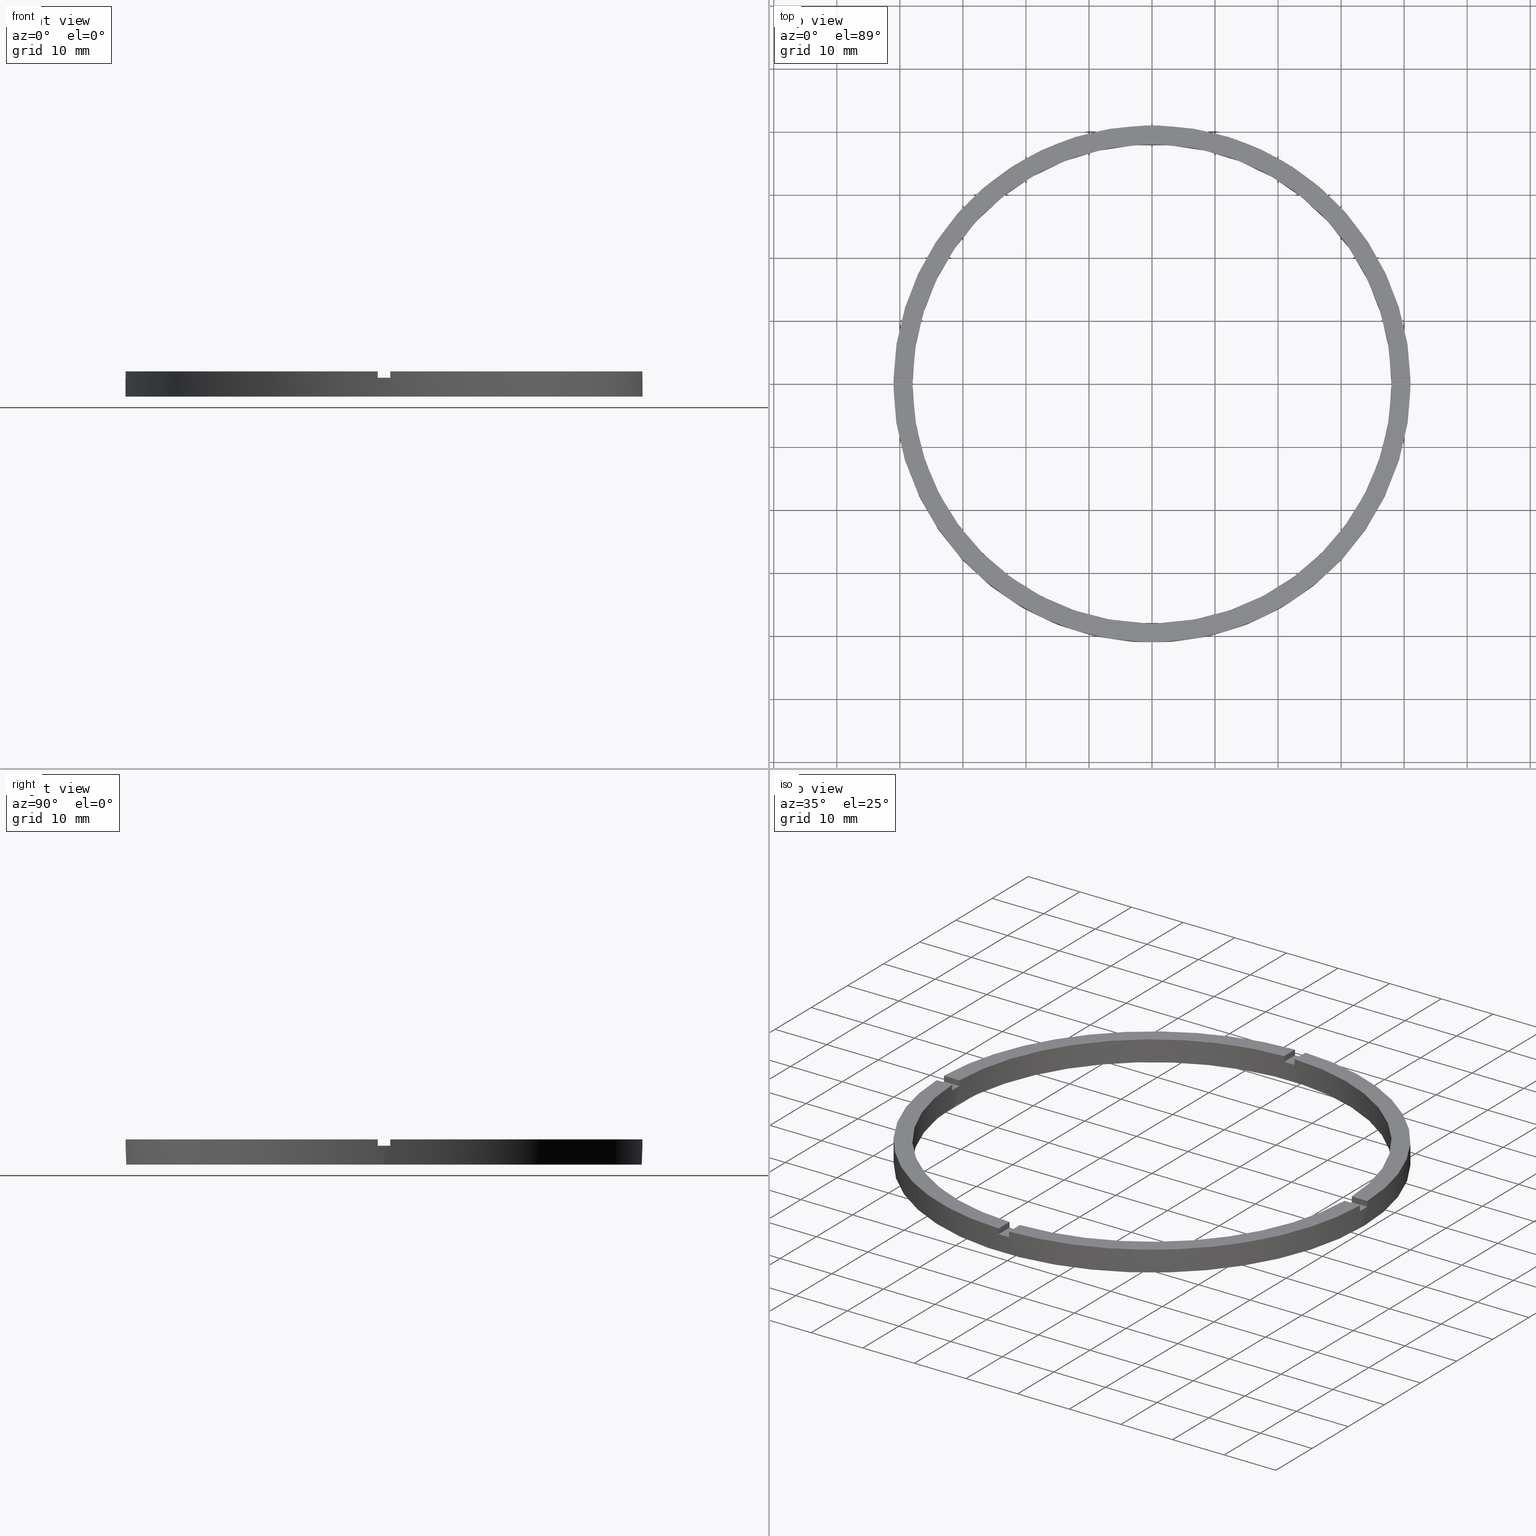
[diagram: canonical four-view strip — front | top / right | iso, engineering-drawing reading convention]
A machine part, canonical four-view strip (front | top / right | iso — engineering-drawing reading convention). The complete STEP part file that produces these views, byte-faithful:
ISO-10303-21;
HEADER;
FILE_DESCRIPTION (( 'STEP AP203' ),
    '1' );
FILE_NAME ('514169.step',
    '2024-12-26T02:44:15',
    ( 'MSI' ),
    ( '' ),
    'SwSTEP 2.0',
    'SolidWorks 2020',
    '' );
FILE_SCHEMA (( 'CONFIG_CONTROL_DESIGN' ));
ENDSEC;

DATA;
#1 = DIRECTION ( 'NONE',  ( 0.000000000000000000, 0.000000000000000000, 1.000000000000000000 ) ) ;
#2 = ORIENTED_EDGE ( 'NONE', *, *, #603, .F. ) ;
#3 = APPROVAL ( #153, 'δָ��' ) ;
#4 = EDGE_CURVE ( 'NONE', #454, #709, #275, .T. ) ;
#5 = CARTESIAN_POINT ( 'NONE',  ( -41.00000000000000000, 0.000000000000000000, 3.000000000000000000 ) ) ;
#6 = ORIENTED_EDGE ( 'NONE', *, *, #267, .T. ) ;
#7 = ORIENTED_EDGE ( 'NONE', *, *, #400, .F. ) ;
#8 = DIRECTION ( 'NONE',  ( 1.301042606982605074E-16, -1.000000000000000000, 0.000000000000000000 ) ) ;
#9 = ORIENTED_EDGE ( 'NONE', *, *, #192, .T. ) ;
#10 = AXIS2_PLACEMENT_3D ( 'NONE', #72, #150, #260 ) ;
#11 = ORIENTED_EDGE ( 'NONE', *, *, #151, .T. ) ;
#12 = AXIS2_PLACEMENT_3D ( 'NONE', #106, #239, #346 ) ;
#13 = DIRECTION ( 'NONE',  ( 0.000000000000000000, 0.000000000000000000, 1.000000000000000000 ) ) ;
#14 = CARTESIAN_POINT ( 'NONE',  ( 0.9999999999998411271, -40.98780306383840610, 3.000000000000000000 ) ) ;
#15 = LINE ( 'NONE', #280, #530 ) ;
#16 = VECTOR ( 'NONE', #586, 1000.000000000000000 ) ;
#17 = EDGE_CURVE ( 'NONE', #287, #416, #284, .T. ) ;
#18 = DIRECTION ( 'NONE',  ( 0.000000000000000000, 0.000000000000000000, 1.000000000000000000 ) ) ;
#19 = LINE ( 'NONE', #551, #533 ) ;
#20 = VECTOR ( 'NONE', #760, 1000.000000000000000 ) ;
#21 = PLANE ( 'NONE',  #10 ) ;
#22 = CARTESIAN_POINT ( 'NONE',  ( 0.000000000000000000, 0.000000000000000000, 3.000000000000000000 ) ) ;
#23 = ADVANCED_FACE ( 'NONE', ( #290 ), #381, .T. ) ;
#24 = APPROVAL_STATUS ( 'not_yet_approved' ) ;
#25 = AXIS2_PLACEMENT_3D ( 'NONE', #687, #33, #750 ) ;
#26 = FACE_OUTER_BOUND ( 'NONE', #722, .T. ) ;
#27 = APPROVAL_ROLE ( '' ) ;
#28 = DIRECTION ( 'NONE',  ( -0.000000000000000000, -0.000000000000000000, -1.000000000000000000 ) ) ;
#29 = APPROVAL ( #649, 'δָ��' ) ;
#30 = EDGE_CURVE ( 'NONE', #448, #257, #19, .T. ) ;
#31 = AXIS2_PLACEMENT_3D ( 'NONE', #89, #684, #96 ) ;
#32 = PLANE ( 'NONE',  #654 ) ;
#33 = DIRECTION ( 'NONE',  ( 0.000000000000000000, 0.000000000000000000, 1.000000000000000000 ) ) ;
#34 = CARTESIAN_POINT ( 'NONE',  ( -31.00000000000018829, 0.9999999999999733546, 3.000000000000000000 ) ) ;
#35 = LINE ( 'NONE', #384, #37 ) ;
#36 = CARTESIAN_POINT ( 'NONE',  ( -37.98683982644515567, -1.000000000000027978, 4.000000000000000000 ) ) ;
#37 = VECTOR ( 'NONE', #490, 1000.000000000000000 ) ;
#38 = EDGE_CURVE ( 'NONE', #448, #367, #272, .T. ) ;
#39 = EDGE_CURVE ( 'NONE', #451, #354, #270, .T. ) ;
#40 = LINE ( 'NONE', #433, #570 ) ;
#41 = LINE ( 'NONE', #469, #310 ) ;
#42 = DIRECTION ( 'NONE',  ( -1.951563910473907735E-16, 1.000000000000000000, 0.000000000000000000 ) ) ;
#43 = DIRECTION ( 'NONE',  ( 1.301042606982605074E-16, -1.000000000000000000, 0.000000000000000000 ) ) ;
#44 = VECTOR ( 'NONE', #547, 1000.000000000000000 ) ;
#45 = LINE ( 'NONE', #57, #313 ) ;
#46 = CARTESIAN_POINT ( 'NONE',  ( 0.000000000000000000, 0.000000000000000000, 3.000000000000000000 ) ) ;
#47 = DIRECTION ( 'NONE',  ( -0.000000000000000000, -0.000000000000000000, -1.000000000000000000 ) ) ;
#48 = CARTESIAN_POINT ( 'NONE',  ( 0.9999999999999742428, 40.98780306383839900, 4.000000000000000000 ) ) ;
#49 = DIRECTION ( 'NONE',  ( -1.000000000000000000, 0.000000000000000000, 0.000000000000000000 ) ) ;
#50 = CIRCLE ( 'NONE', #200, 38.00000000000000000 ) ;
#51 = CIRCLE ( 'NONE', #158, 41.00000000000000000 ) ;
#52 = PLANE ( 'NONE',  #249 ) ;
#53 = AXIS2_PLACEMENT_3D ( 'NONE', #160, #225, #518 ) ;
#54 = VECTOR ( 'NONE', #28, 1000.000000000000000 ) ;
#55 = CARTESIAN_POINT ( 'NONE',  ( 40.98780306383840610, 0.9999999999998432365, 4.000000000000000000 ) ) ;
#56 = LINE ( 'NONE', #116, #370 ) ;
#57 = CARTESIAN_POINT ( 'NONE',  ( 0.9999999999998397948, -31.00000000000018119, 3.000000000000000000 ) ) ;
#58 = FACE_OUTER_BOUND ( 'NONE', #133, .T. ) ;
#59 = FACE_OUTER_BOUND ( 'NONE', #98, .T. ) ;
#60 = AXIS2_PLACEMENT_3D ( 'NONE', #430, #223, #497 ) ;
#61 = AXIS2_PLACEMENT_3D ( 'NONE', #46, #646, #485 ) ;
#62 = FACE_OUTER_BOUND ( 'NONE', #768, .T. ) ;
#63 = LINE ( 'NONE', #688, #54 ) ;
#64 = ORGANIZATION ( 'δָ��', 'δָ��', '' ) ;
#65 = CARTESIAN_POINT ( 'NONE',  ( -38.00000000000000000, 0.000000000000000000, 4.000000000000000000 ) ) ;
#66 = PERSON_AND_ORGANIZATION ( #419, #64 ) ;
#67 = DESIGN_CONTEXT ( 'detailed design', #682, 'design' ) ;
#68 = LINE ( 'NONE', #188, #79 ) ;
#69 = VECTOR ( 'NONE', #228, 1000.000000000000000 ) ;
#70 = VECTOR ( 'NONE', #165, 1000.000000000000000 ) ;
#71 = FACE_OUTER_BOUND ( 'NONE', #528, .T. ) ;
#72 = CARTESIAN_POINT ( 'NONE',  ( 0.000000000000000000, 0.000000000000000000, 0.000000000000000000 ) ) ;
#73 = VECTOR ( 'NONE', #447, 1000.000000000000000 ) ;
#74 = AXIS2_PLACEMENT_3D ( 'NONE', #235, #584, #776 ) ;
#75 = LINE ( 'NONE', #477, #345 ) ;
#76 = VECTOR ( 'NONE', #352, 1000.000000000000000 ) ;
#77 = CARTESIAN_POINT ( 'NONE',  ( -37.98683982644515567, 0.9999999999999720224, 4.000000000000000000 ) ) ;
#78 = VECTOR ( 'NONE', #308, 1000.000000000000000 ) ;
#79 = VECTOR ( 'NONE', #734, 1000.000000000000000 ) ;
#80 = LINE ( 'NONE', #171, #361 ) ;
#81 = CIRCLE ( 'NONE', #566, 38.00000000000000000 ) ;
#82 = CARTESIAN_POINT ( 'NONE',  ( -37.98683982644515567, -1.000000000000027978, 3.000000000000000000 ) ) ;
#83 = ADVANCED_FACE ( 'NONE', ( #26 ), #32, .F. ) ;
#84 = EDGE_CURVE ( 'NONE', #525, #359, #15, .T. ) ;
#85 = VERTEX_POINT ( 'NONE', #468 ) ;
#86 = CLOSED_SHELL ( 'NONE', ( #492, #677, #616, #597, #208, #374, #149, #496, #218, #325, #637, #446, #83, #729, #736, #606, #683, #23, #671, #540, #330 ) ) ;
#87 = PERSON_AND_ORGANIZATION_ROLE ( 'design_supplier' ) ;
#88 = ORIENTED_EDGE ( 'NONE', *, *, #656, .F. ) ;
#89 = CARTESIAN_POINT ( 'NONE',  ( 0.000000000000000000, 0.000000000000000000, 4.000000000000000000 ) ) ;
#90 = VECTOR ( 'NONE', #342, 1000.000000000000000 ) ;
#91 = ORIENTED_EDGE ( 'NONE', *, *, #647, .T. ) ;
#92 = LINE ( 'NONE', #302, #101 ) ;
#93 = APPROVAL_ROLE ( '' ) ;
#94 = CIRCLE ( 'NONE', #444, 38.00000000000000000 ) ;
#95 = CARTESIAN_POINT ( 'NONE',  ( 0.9999999999998397948, -31.00000000000018119, 3.000000000000000000 ) ) ;
#96 = DIRECTION ( 'NONE',  ( -1.000000000000000000, 0.000000000000000000, 0.000000000000000000 ) ) ;
#97 = CARTESIAN_POINT ( 'NONE',  ( 0.000000000000000000, 0.000000000000000000, 4.000000000000000000 ) ) ;
#98 = EDGE_LOOP ( 'NONE', ( #520, #770, #697, #255 ) ) ;
#99 = EDGE_LOOP ( 'NONE', ( #204, #703, #662, #743, #441, #403, #134, #399, #2, #409, #199, #413 ) ) ;
#100 = CC_DESIGN_APPROVAL ( #3, ( #590 ) ) ;
#101 = VECTOR ( 'NONE', #421, 1000.000000000000000 ) ;
#102 = EDGE_CURVE ( 'NONE', #483, #359, #279, .T. ) ;
#103 = VERTEX_POINT ( 'NONE', #516 ) ;
#104 = APPLICATION_CONTEXT ( 'configuration controlled 3d designs of mechanical parts and assemblies' ) ;
#105 = CIRCLE ( 'NONE', #271, 41.00000000000000000 ) ;
#106 = CARTESIAN_POINT ( 'NONE',  ( 0.000000000000000000, 0.000000000000000000, 4.000000000000000000 ) ) ;
#107 = DIRECTION ( 'NONE',  ( 0.000000000000000000, 0.000000000000000000, 1.000000000000000000 ) ) ;
#108 = DIRECTION ( 'NONE',  ( 0.000000000000000000, 0.000000000000000000, 1.000000000000000000 ) ) ;
#109 = VECTOR ( 'NONE', #180, 1000.000000000000000 ) ;
#110 = CARTESIAN_POINT ( 'NONE',  ( -40.98780306383839900, -1.000000000000028644, 3.000000000000000000 ) ) ;
#111 =( NAMED_UNIT ( * ) SI_UNIT ( $, .STERADIAN. ) SOLID_ANGLE_UNIT ( ) );
#112 = CIRCLE ( 'NONE', #53, 41.00000000000000000 ) ;
#113 = ORIENTED_EDGE ( 'NONE', *, *, #549, .F. ) ;
#114 = VECTOR ( 'NONE', #769, 1000.000000000000000 ) ;
#115 = DIRECTION ( 'NONE',  ( -1.000000000000000000, -1.951563910473907735E-16, 0.000000000000000000 ) ) ;
#116 = CARTESIAN_POINT ( 'NONE',  ( -1.000000000000025535, 31.00000000000000000, 3.000000000000000000 ) ) ;
#117 = CARTESIAN_POINT ( 'NONE',  ( 0.9999999999999744649, 31.00000000000000000, 3.000000000000000000 ) ) ;
#118 = EDGE_CURVE ( 'NONE', #354, #243, #292, .T. ) ;
#119 = CC_DESIGN_PERSON_AND_ORGANIZATION_ASSIGNMENT ( #66, #509, ( #140 ) ) ;
#120 = EDGE_LOOP ( 'NONE', ( #202, #138, #396, #491, #699, #457 ) ) ;
#121 = PLANE ( 'NONE',  #132 ) ;
#122 = CARTESIAN_POINT ( 'NONE',  ( 40.98780306383839189, -1.000000000000156763, 4.000000000000000000 ) ) ;
#123 = FACE_OUTER_BOUND ( 'NONE', #730, .T. ) ;
#124 = EDGE_CURVE ( 'NONE', #525, #254, #539, .T. ) ;
#125 = LINE ( 'NONE', #410, #395 ) ;
#126 = CARTESIAN_POINT ( 'NONE',  ( 30.99999999999999289, -1.000000000000157430, 3.000000000000000000 ) ) ;
#127 = ORIENTED_EDGE ( 'NONE', *, *, #143, .T. ) ;
#128 = DIRECTION ( 'NONE',  ( 0.000000000000000000, 0.000000000000000000, 1.000000000000000000 ) ) ;
#129 = LINE ( 'NONE', #705, #114 ) ;
#130 = ORIENTED_EDGE ( 'NONE', *, *, #733, .T. ) ;
#131 = PLANE ( 'NONE',  #295 ) ;
#132 = AXIS2_PLACEMENT_3D ( 'NONE', #155, #775, #720 ) ;
#133 = EDGE_LOOP ( 'NONE', ( #455, #127, #392, #406 ) ) ;
#134 = ORIENTED_EDGE ( 'NONE', *, *, #440, .F. ) ;
#135 = APPROVAL_DATE_TIME ( #737, #29 ) ;
#136 = ORIENTED_EDGE ( 'NONE', *, *, #753, .T. ) ;
#137 = DIRECTION ( 'NONE',  ( 1.000000000000000000, 2.168404344971008560E-17, 0.000000000000000000 ) ) ;
#138 = ORIENTED_EDGE ( 'NONE', *, *, #680, .T. ) ;
#139 = CARTESIAN_POINT ( 'NONE',  ( 0.000000000000000000, 0.000000000000000000, 4.000000000000000000 ) ) ;
#140 = PRODUCT ( '514169', '514169', '', ( #288 ) ) ;
#141 = ADVANCED_BREP_SHAPE_REPRESENTATION ( '514169', ( #184, #431 ), #221 ) ;
#142 = PRODUCT_RELATED_PRODUCT_CATEGORY ( 'detail', '', ( #140 ) ) ;
#143 = EDGE_CURVE ( 'NONE', #451, #377, #546, .T. ) ;
#144 = PLANE ( 'NONE',  #351 ) ;
#145 = ORIENTED_EDGE ( 'NONE', *, *, #320, .T. ) ;
#146 = DIRECTION ( 'NONE',  ( 0.000000000000000000, 0.000000000000000000, 1.000000000000000000 ) ) ;
#147 = ORIENTED_EDGE ( 'NONE', *, *, #717, .T. ) ;
#148 = CARTESIAN_POINT ( 'NONE',  ( 0.000000000000000000, 0.000000000000000000, 4.000000000000000000 ) ) ;
#149 = ADVANCED_FACE ( 'NONE', ( #548, #550 ), #21, .F. ) ;
#150 = DIRECTION ( 'NONE',  ( 0.000000000000000000, 0.000000000000000000, 1.000000000000000000 ) ) ;
#151 = EDGE_CURVE ( 'NONE', #367, #506, #542, .T. ) ;
#152 = DIRECTION ( 'NONE',  ( 1.000000000000000000, 0.000000000000000000, 0.000000000000000000 ) ) ;
#153 = APPROVAL_STATUS ( 'not_yet_approved' ) ;
#154 = ORIENTED_EDGE ( 'NONE', *, *, #30, .T. ) ;
#155 = CARTESIAN_POINT ( 'NONE',  ( 30.99999999999999289, 0.9999999999998425704, 3.000000000000000000 ) ) ;
#156 = DIRECTION ( 'NONE',  ( 1.000000000000000000, 0.000000000000000000, 0.000000000000000000 ) ) ;
#157 = ORIENTED_EDGE ( 'NONE', *, *, #655, .F. ) ;
#158 = AXIS2_PLACEMENT_3D ( 'NONE', #711, #108, #527 ) ;
#159 = DIRECTION ( 'NONE',  ( -1.301042606982605074E-16, 1.000000000000000000, 0.000000000000000000 ) ) ;
#160 = CARTESIAN_POINT ( 'NONE',  ( 0.000000000000000000, 0.000000000000000000, 0.000000000000000000 ) ) ;
#161 = CARTESIAN_POINT ( 'NONE',  ( -41.00000000000000000, 0.000000000000000000, 0.000000000000000000 ) ) ;
#162 = AXIS2_PLACEMENT_3D ( 'NONE', #300, #721, #783 ) ;
#163 = DIRECTION ( 'NONE',  ( 1.000000000000000000, 0.000000000000000000, 0.000000000000000000 ) ) ;
#164 = DIRECTION ( 'NONE',  ( 1.000000000000000000, 0.000000000000000000, 0.000000000000000000 ) ) ;
#165 = DIRECTION ( 'NONE',  ( -2.168404344971008560E-17, 1.000000000000000000, 0.000000000000000000 ) ) ;
#166 = COORDINATED_UNIVERSAL_TIME_OFFSET ( 8, 0, .AHEAD. ) ;
#167 = COORDINATED_UNIVERSAL_TIME_OFFSET ( 8, 0, .AHEAD. ) ;
#168 = DIRECTION ( 'NONE',  ( -1.301042606982605074E-16, 1.000000000000000000, -0.000000000000000000 ) ) ;
#169 = ORIENTED_EDGE ( 'NONE', *, *, #102, .T. ) ;
#170 = APPROVAL_PERSON_ORGANIZATION ( #442, #3, #27 ) ;
#171 = CARTESIAN_POINT ( 'NONE',  ( -1.000000000000160316, -31.00000000000018119, 4.000000000000000000 ) ) ;
#172 = VERTEX_POINT ( 'NONE', #559 ) ;
#173 = PERSON_AND_ORGANIZATION ( #419, #64 ) ;
#174 = CC_DESIGN_SECURITY_CLASSIFICATION ( #422, ( #590 ) ) ;
#175 = EDGE_CURVE ( 'NONE', #642, #631, #569, .T. ) ;
#176 = CC_DESIGN_APPROVAL ( #500, ( #364 ) ) ;
#177 = LOCAL_TIME ( 10, 44, 15.00000000000000000, #166 ) ;
#178 = ORIENTED_EDGE ( 'NONE', *, *, #680, .F. ) ;
#179 = APPROVAL_DATE_TIME ( #439, #3 ) ;
#180 = DIRECTION ( 'NONE',  ( 0.000000000000000000, 0.000000000000000000, 1.000000000000000000 ) ) ;
#181 = VERTEX_POINT ( 'NONE', #538 ) ;
#182 = CARTESIAN_POINT ( 'NONE',  ( 0.000000000000000000, 0.000000000000000000, 3.000000000000000000 ) ) ;
#183 = EDGE_LOOP ( 'NONE', ( #640, #11, #702, #708, #371, #604, #248, #189, #726, #514, #508, #386 ) ) ;
#184 = MANIFOLD_SOLID_BREP ( '�г�-����1', #86 ) ;
#185 = EDGE_LOOP ( 'NONE', ( #405, #229, #169, #522 ) ) ;
#186 = ORIENTED_EDGE ( 'NONE', *, *, #344, .T. ) ;
#187 = DIRECTION ( 'NONE',  ( 1.000000000000000000, 1.301042606982605074E-16, 0.000000000000000000 ) ) ;
#188 = CARTESIAN_POINT ( 'NONE',  ( -41.00000000000000000, 0.000000000000000000, 4.000000000000000000 ) ) ;
#189 = ORIENTED_EDGE ( 'NONE', *, *, #613, .T. ) ;
#190 = DIRECTION ( 'NONE',  ( 1.000000000000000000, 0.000000000000000000, 0.000000000000000000 ) ) ;
#191 = EDGE_CURVE ( 'NONE', #366, #262, #324, .T. ) ;
#192 = EDGE_CURVE ( 'NONE', #85, #765, #315, .T. ) ;
#193 = VERTEX_POINT ( 'NONE', #742 ) ;
#194 = ORIENTED_EDGE ( 'NONE', *, *, #4, .F. ) ;
#195 = DIRECTION ( 'NONE',  ( 1.000000000000000000, 1.951563910473907735E-16, -0.000000000000000000 ) ) ;
#196 = ORIENTED_EDGE ( 'NONE', *, *, #294, .T. ) ;
#197 = CARTESIAN_POINT ( 'NONE',  ( 0.9999999999999742428, 40.98780306383839900, 4.000000000000000000 ) ) ;
#198 = ORIENTED_EDGE ( 'NONE', *, *, #656, .T. ) ;
#199 = ORIENTED_EDGE ( 'NONE', *, *, #219, .T. ) ;
#200 = AXIS2_PLACEMENT_3D ( 'NONE', #139, #128, #731 ) ;
#201 = ORIENTED_EDGE ( 'NONE', *, *, #267, .F. ) ;
#202 = ORIENTED_EDGE ( 'NONE', *, *, #124, .T. ) ;
#203 = EDGE_LOOP ( 'NONE', ( #510, #621, #211, #781 ) ) ;
#204 = ORIENTED_EDGE ( 'NONE', *, *, #375, .F. ) ;
#205 = CARTESIAN_POINT ( 'NONE',  ( 0.9999999999999744649, 31.00000000000000000, 3.000000000000000000 ) ) ;
#206 = ORIENTED_EDGE ( 'NONE', *, *, #480, .F. ) ;
#207 = CARTESIAN_POINT ( 'NONE',  ( -1.000000000000159428, -37.98683982644514856, 4.000000000000000000 ) ) ;
#208 = ADVANCED_FACE ( 'NONE', ( #301 ), #52, .T. ) ;
#209 = ORIENTED_EDGE ( 'NONE', *, *, #294, .F. ) ;
#210 = EDGE_CURVE ( 'NONE', #243, #193, #45, .T. ) ;
#211 = ORIENTED_EDGE ( 'NONE', *, *, #534, .F. ) ;
#212 = DIRECTION ( 'NONE',  ( 0.000000000000000000, 0.000000000000000000, 1.000000000000000000 ) ) ;
#213 = ORIENTED_EDGE ( 'NONE', *, *, #258, .T. ) ;
#214 = AXIS2_PLACEMENT_3D ( 'NONE', #233, #107, #576 ) ;
#215 = ORIENTED_EDGE ( 'NONE', *, *, #102, .F. ) ;
#216 = DIRECTION ( 'NONE',  ( 0.000000000000000000, 0.000000000000000000, 1.000000000000000000 ) ) ;
#217 = LOCAL_TIME ( 10, 44, 15.00000000000000000, #230 ) ;
#218 = ADVANCED_FACE ( 'NONE', ( #305 ), #322, .F. ) ;
#219 = EDGE_CURVE ( 'NONE', #181, #693, #562, .T. ) ;
#220 = PLANE ( 'NONE',  #524 ) ;
#221 =( GEOMETRIC_REPRESENTATION_CONTEXT ( 3 ) GLOBAL_UNCERTAINTY_ASSIGNED_CONTEXT ( ( #568 ) ) GLOBAL_UNIT_ASSIGNED_CONTEXT ( ( #700, #772, #111 ) ) REPRESENTATION_CONTEXT ( 'NONE', 'WORKASPACE' ) );
#222 = DIRECTION ( 'NONE',  ( 1.000000000000000000, 0.000000000000000000, 0.000000000000000000 ) ) ;
#223 = DIRECTION ( 'NONE',  ( 0.000000000000000000, 0.000000000000000000, 1.000000000000000000 ) ) ;
#224 = ORIENTED_EDGE ( 'NONE', *, *, #666, .T. ) ;
#225 = DIRECTION ( 'NONE',  ( 0.000000000000000000, 0.000000000000000000, 1.000000000000000000 ) ) ;
#226 = CARTESIAN_POINT ( 'NONE',  ( 41.00000000000000000, 5.021051876504148963E-15, 3.000000000000000000 ) ) ;
#227 = CARTESIAN_POINT ( 'NONE',  ( -1.000000000000159428, -37.98683982644514856, 3.000000000000000000 ) ) ;
#228 = DIRECTION ( 'NONE',  ( 1.000000000000000000, 1.951563910473907735E-16, -0.000000000000000000 ) ) ;
#229 = ORIENTED_EDGE ( 'NONE', *, *, #603, .T. ) ;
#230 = COORDINATED_UNIVERSAL_TIME_OFFSET ( 8, 0, .AHEAD. ) ;
#231 = DIRECTION ( 'NONE',  ( -0.000000000000000000, -0.000000000000000000, -1.000000000000000000 ) ) ;
#232 = DIRECTION ( 'NONE',  ( 1.000000000000000000, 0.000000000000000000, 0.000000000000000000 ) ) ;
#233 = CARTESIAN_POINT ( 'NONE',  ( 0.000000000000000000, 0.000000000000000000, 0.000000000000000000 ) ) ;
#234 = EDGE_CURVE ( 'NONE', #394, #525, #560, .T. ) ;
#235 = CARTESIAN_POINT ( 'NONE',  ( 0.000000000000000000, 0.000000000000000000, 3.000000000000000000 ) ) ;
#236 = CARTESIAN_POINT ( 'NONE',  ( 0.9999999999998411271, -40.98780306383840610, 4.000000000000000000 ) ) ;
#237 = ORIENTED_EDGE ( 'NONE', *, *, #535, .T. ) ;
#238 = ORIENTED_EDGE ( 'NONE', *, *, #344, .F. ) ;
#239 = DIRECTION ( 'NONE',  ( 0.000000000000000000, 0.000000000000000000, 1.000000000000000000 ) ) ;
#240 = ORIENTED_EDGE ( 'NONE', *, *, #479, .T. ) ;
#241 = ORIENTED_EDGE ( 'NONE', *, *, #544, .T. ) ;
#242 = DIRECTION ( 'NONE',  ( 0.000000000000000000, 0.000000000000000000, 1.000000000000000000 ) ) ;
#243 = VERTEX_POINT ( 'NONE', #14 ) ;
#244 = CARTESIAN_POINT ( 'NONE',  ( -31.00000000000018829, 0.9999999999999733546, 4.000000000000000000 ) ) ;
#245 = ORIENTED_EDGE ( 'NONE', *, *, #591, .F. ) ;
#246 = DIRECTION ( 'NONE',  ( -0.000000000000000000, 0.000000000000000000, 1.000000000000000000 ) ) ;
#247 = ORIENTED_EDGE ( 'NONE', *, *, #219, .F. ) ;
#248 = ORIENTED_EDGE ( 'NONE', *, *, #647, .F. ) ;
#249 = AXIS2_PLACEMENT_3D ( 'NONE', #665, #378, #610 ) ;
#250 = ORIENTED_EDGE ( 'NONE', *, *, #424, .F. ) ;
#251 = DIRECTION ( 'NONE',  ( 0.000000000000000000, 0.000000000000000000, 1.000000000000000000 ) ) ;
#252 = EDGE_CURVE ( 'NONE', #625, #416, #555, .T. ) ;
#253 = AXIS2_PLACEMENT_3D ( 'NONE', #269, #761, #8 ) ;
#254 = VERTEX_POINT ( 'NONE', #5 ) ;
#255 = ORIENTED_EDGE ( 'NONE', *, *, #549, .T. ) ;
#256 = DIRECTION ( 'NONE',  ( 0.000000000000000000, 0.000000000000000000, 1.000000000000000000 ) ) ;
#257 = VERTEX_POINT ( 'NONE', #122 ) ;
#258 = EDGE_CURVE ( 'NONE', #445, #377, #50, .T. ) ;
#259 = AXIS2_PLACEMENT_3D ( 'NONE', #306, #681, #449 ) ;
#260 = DIRECTION ( 'NONE',  ( 1.000000000000000000, 0.000000000000000000, -0.000000000000000000 ) ) ;
#261 = DATE_TIME_ROLE ( 'classification_date' ) ;
#262 = VERTEX_POINT ( 'NONE', #427 ) ;
#263 = CARTESIAN_POINT ( 'NONE',  ( -1.000000000000158984, -40.98780306383839189, 3.000000000000000000 ) ) ;
#264 = ORIENTED_EDGE ( 'NONE', *, *, #258, .F. ) ;
#265 = CARTESIAN_POINT ( 'NONE',  ( 0.000000000000000000, 0.000000000000000000, 4.000000000000000000 ) ) ;
#266 = CARTESIAN_POINT ( 'NONE',  ( 0.000000000000000000, 0.000000000000000000, 3.000000000000000000 ) ) ;
#267 = EDGE_CURVE ( 'NONE', #607, #243, #35, .T. ) ;
#268 = ORIENTED_EDGE ( 'NONE', *, *, #752, .T. ) ;
#269 = CARTESIAN_POINT ( 'NONE',  ( -1.000000000000160316, -31.00000000000018119, 3.000000000000000000 ) ) ;
#270 = LINE ( 'NONE', #368, #20 ) ;
#271 = AXIS2_PLACEMENT_3D ( 'NONE', #585, #1, #595 ) ;
#272 = CIRCLE ( 'NONE', #486, 41.00000000000000000 ) ;
#273 = DIRECTION ( 'NONE',  ( 0.000000000000000000, 0.000000000000000000, 1.000000000000000000 ) ) ;
#274 = VECTOR ( 'NONE', #146, 1000.000000000000000 ) ;
#275 = LINE ( 'NONE', #489, #552 ) ;
#276 = DIRECTION ( 'NONE',  ( 0.000000000000000000, 0.000000000000000000, 1.000000000000000000 ) ) ;
#277 = DIRECTION ( 'NONE',  ( 0.000000000000000000, 0.000000000000000000, 1.000000000000000000 ) ) ;
#278 = CARTESIAN_POINT ( 'NONE',  ( 38.00000000000000000, 4.653657836759941941E-15, 3.000000000000000000 ) ) ;
#279 = LINE ( 'NONE', #244, #16 ) ;
#280 = CARTESIAN_POINT ( 'NONE',  ( -40.98780306383839900, 0.9999999999999713562, 4.000000000000000000 ) ) ;
#281 = CC_DESIGN_PERSON_AND_ORGANIZATION_ASSIGNMENT ( #744, #515, ( #590 ) ) ;
#282 = CARTESIAN_POINT ( 'NONE',  ( 30.99999999999999289, -1.000000000000157430, 3.000000000000000000 ) ) ;
#283 = EDGE_CURVE ( 'NONE', #625, #612, #317, .T. ) ;
#284 = CIRCLE ( 'NONE', #12, 41.00000000000000000 ) ;
#285 = CARTESIAN_POINT ( 'NONE',  ( 0.9999999999999742428, 37.98683982644515567, 3.000000000000000000 ) ) ;
#286 = CARTESIAN_POINT ( 'NONE',  ( 0.000000000000000000, 0.000000000000000000, 0.000000000000000000 ) ) ;
#287 = VERTEX_POINT ( 'NONE', #55 ) ;
#288 = MECHANICAL_CONTEXT ( 'NONE', #104, 'mechanical' ) ;
#289 = DIRECTION ( 'NONE',  ( 1.000000000000000000, 1.951563910473907735E-16, 0.000000000000000000 ) ) ;
#290 = FACE_OUTER_BOUND ( 'NONE', #617, .T. ) ;
#291 = DIRECTION ( 'NONE',  ( -1.000000000000000000, 0.000000000000000000, 0.000000000000000000 ) ) ;
#292 = CIRCLE ( 'NONE', #476, 41.00000000000000000 ) ;
#293 = EDGE_CURVE ( 'NONE', #642, #262, #40, .T. ) ;
#294 = EDGE_CURVE ( 'NONE', #751, #103, #41, .T. ) ;
#295 = AXIS2_PLACEMENT_3D ( 'NONE', #376, #246, #426 ) ;
#296 = PLANE ( 'NONE',  #634 ) ;
#297 = CARTESIAN_POINT ( 'NONE',  ( 0.9999999999999744649, 31.00000000000000000, 4.000000000000000000 ) ) ;
#298 = CARTESIAN_POINT ( 'NONE',  ( -1.000000000000025535, 31.00000000000000000, 3.000000000000000000 ) ) ;
#299 = EDGE_CURVE ( 'NONE', #707, #693, #312, .T. ) ;
#300 = CARTESIAN_POINT ( 'NONE',  ( 0.000000000000000000, 0.000000000000000000, 4.000000000000000000 ) ) ;
#301 = FACE_OUTER_BOUND ( 'NONE', #460, .T. ) ;
#302 = CARTESIAN_POINT ( 'NONE',  ( 0.9999999999998406830, -37.98683982644516277, 4.000000000000000000 ) ) ;
#303 = AXIS2_PLACEMENT_3D ( 'NONE', #398, #696, #289 ) ;
#304 = DIRECTION ( 'NONE',  ( 1.000000000000000000, 0.000000000000000000, 0.000000000000000000 ) ) ;
#305 = FACE_OUTER_BOUND ( 'NONE', #99, .T. ) ;
#306 = CARTESIAN_POINT ( 'NONE',  ( 0.000000000000000000, 0.000000000000000000, 3.000000000000000000 ) ) ;
#307 = CARTESIAN_POINT ( 'NONE',  ( -1.000000000000025757, 40.98780306383839900, 4.000000000000000000 ) ) ;
#308 = DIRECTION ( 'NONE',  ( 1.000000000000000000, 6.505213034913025371E-17, 0.000000000000000000 ) ) ;
#309 = DIRECTION ( 'NONE',  ( -1.301042606982605074E-16, 1.000000000000000000, -0.000000000000000000 ) ) ;
#310 = VECTOR ( 'NONE', #571, 1000.000000000000000 ) ;
#311 = AXIS2_PLACEMENT_3D ( 'NONE', #148, #464, #291 ) ;
#312 = CIRCLE ( 'NONE', #663, 38.00000000000000000 ) ;
#313 = VECTOR ( 'NONE', #309, 1000.000000000000000 ) ;
#314 = DIRECTION ( 'NONE',  ( 1.000000000000000000, 0.000000000000000000, 0.000000000000000000 ) ) ;
#315 = CIRCLE ( 'NONE', #428, 38.00000000000000000 ) ;
#316 = CARTESIAN_POINT ( 'NONE',  ( 30.99999999999999289, -1.000000000000157430, 4.000000000000000000 ) ) ;
#317 = CIRCLE ( 'NONE', #412, 41.00000000000000000 ) ;
#318 = CC_DESIGN_DATE_AND_TIME_ASSIGNMENT ( #694, #766, ( #364 ) ) ;
#319 = CIRCLE ( 'NONE', #619, 38.00000000000000000 ) ;
#320 = EDGE_CURVE ( 'NONE', #607, #257, #51, .T. ) ;
#321 = EDGE_CURVE ( 'NONE', #451, #193, #319, .T. ) ;
#322 = CYLINDRICAL_SURFACE ( 'NONE', #716, 38.00000000000000000 ) ;
#323 = DIRECTION ( 'NONE',  ( -2.168404344971008560E-17, 1.000000000000000000, 0.000000000000000000 ) ) ;
#324 = CIRCLE ( 'NONE', #679, 38.00000000000000000 ) ;
#325 = ADVANCED_FACE ( 'NONE', ( #62 ), #331, .F. ) ;
#326 = CARTESIAN_POINT ( 'NONE',  ( 41.00000000000000000, 5.021051876504148963E-15, 4.000000000000000000 ) ) ;
#327 = FACE_OUTER_BOUND ( 'NONE', #712, .T. ) ;
#328 = DIRECTION ( 'NONE',  ( 1.000000000000000000, 0.000000000000000000, -0.000000000000000000 ) ) ;
#329 = DIRECTION ( 'NONE',  ( 0.000000000000000000, 0.000000000000000000, 1.000000000000000000 ) ) ;
#330 = ADVANCED_FACE ( 'NONE', ( #59 ), #567, .T. ) ;
#331 = PLANE ( 'NONE',  #303 ) ;
#332 = LINE ( 'NONE', #756, #69 ) ;
#333 = CIRCLE ( 'NONE', #61, 41.00000000000000000 ) ;
#334 = CARTESIAN_POINT ( 'NONE',  ( 0.9999999999999742428, 40.98780306383839900, 3.000000000000000000 ) ) ;
#335 = CARTESIAN_POINT ( 'NONE',  ( 37.98683982644516277, 0.9999999999998430145, 3.000000000000000000 ) ) ;
#336 = LINE ( 'NONE', #780, #582 ) ;
#337 = CARTESIAN_POINT ( 'NONE',  ( 40.98780306383839189, -1.000000000000156763, 3.000000000000000000 ) ) ;
#338 = PERSON_AND_ORGANIZATION ( #419, #64 ) ;
#339 = LINE ( 'NONE', #667, #109 ) ;
#340 = FACE_OUTER_BOUND ( 'NONE', #380, .T. ) ;
#341 = DIRECTION ( 'NONE',  ( -0.000000000000000000, 0.000000000000000000, 1.000000000000000000 ) ) ;
#342 = DIRECTION ( 'NONE',  ( 1.000000000000000000, 6.505213034913025371E-17, 0.000000000000000000 ) ) ;
#343 = VECTOR ( 'NONE', #675, 1000.000000000000000 ) ;
#344 = EDGE_CURVE ( 'NONE', #462, #454, #63, .T. ) ;
#345 = VECTOR ( 'NONE', #658, 1000.000000000000000 ) ;
#346 = DIRECTION ( 'NONE',  ( 1.000000000000000000, 0.000000000000000000, 0.000000000000000000 ) ) ;
#347 = VECTOR ( 'NONE', #713, 1000.000000000000000 ) ;
#348 = CIRCLE ( 'NONE', #25, 38.00000000000000000 ) ;
#349 = PLANE ( 'NONE',  #764 ) ;
#350 = LINE ( 'NONE', #531, #641 ) ;
#351 = AXIS2_PLACEMENT_3D ( 'NONE', #205, #137, #323 ) ;
#352 = DIRECTION ( 'NONE',  ( -0.000000000000000000, -0.000000000000000000, -1.000000000000000000 ) ) ;
#353 = CIRCLE ( 'NONE', #581, 41.00000000000000000 ) ;
#354 = VERTEX_POINT ( 'NONE', #263 ) ;
#355 = VERTEX_POINT ( 'NONE', #335 ) ;
#356 = CARTESIAN_POINT ( 'NONE',  ( 0.000000000000000000, 0.000000000000000000, 4.000000000000000000 ) ) ;
#357 = DIRECTION ( 'NONE',  ( 2.168404344971008560E-17, -1.000000000000000000, -0.000000000000000000 ) ) ;
#358 = FACE_OUTER_BOUND ( 'NONE', #120, .T. ) ;
#359 = VERTEX_POINT ( 'NONE', #505 ) ;
#360 = DIRECTION ( 'NONE',  ( -2.168404344971008560E-17, 1.000000000000000000, 0.000000000000000000 ) ) ;
#361 = VECTOR ( 'NONE', #43, 1000.000000000000000 ) ;
#362 = ORIENTED_EDGE ( 'NONE', *, *, #321, .T. ) ;
#363 = CYLINDRICAL_SURFACE ( 'NONE', #668, 41.00000000000000000 ) ;
#364 = PRODUCT_DEFINITION ( 'δ֪', '', #590, #67 ) ;
#365 = DIRECTION ( 'NONE',  ( 0.000000000000000000, 0.000000000000000000, 1.000000000000000000 ) ) ;
#366 = VERTEX_POINT ( 'NONE', #463 ) ;
#367 = VERTEX_POINT ( 'NONE', #226 ) ;
#368 = CARTESIAN_POINT ( 'NONE',  ( -1.000000000000160316, -31.00000000000018119, 3.000000000000000000 ) ) ;
#369 = PLANE ( 'NONE',  #253 ) ;
#370 = VECTOR ( 'NONE', #357, 1000.000000000000000 ) ;
#371 = ORIENTED_EDGE ( 'NONE', *, *, #124, .F. ) ;
#372 = DIRECTION ( 'NONE',  ( -0.000000000000000000, -0.000000000000000000, -1.000000000000000000 ) ) ;
#373 = VERTEX_POINT ( 'NONE', #411 ) ;
#374 = ADVANCED_FACE ( 'NONE', ( #327 ), #349, .T. ) ;
#375 = EDGE_CURVE ( 'NONE', #773, #707, #577, .T. ) ;
#376 = CARTESIAN_POINT ( 'NONE',  ( 0.000000000000000000, 0.000000000000000000, 3.000000000000000000 ) ) ;
#377 = VERTEX_POINT ( 'NONE', #561 ) ;
#378 = DIRECTION ( 'NONE',  ( 0.000000000000000000, 0.000000000000000000, 1.000000000000000000 ) ) ;
#379 = EDGE_LOOP ( 'NONE', ( #157, #523 ) ) ;
#380 = EDGE_LOOP ( 'NONE', ( #517, #507, #438, #779 ) ) ;
#381 = PLANE ( 'NONE',  #60 ) ;
#382 = ORIENTED_EDGE ( 'NONE', *, *, #143, .F. ) ;
#383 = ORIENTED_EDGE ( 'NONE', *, *, #544, .F. ) ;
#384 = CARTESIAN_POINT ( 'NONE',  ( 0.9999999999998411271, -40.98780306383840610, 4.000000000000000000 ) ) ;
#385 = DIRECTION ( 'NONE',  ( 0.000000000000000000, 0.000000000000000000, 1.000000000000000000 ) ) ;
#386 = ORIENTED_EDGE ( 'NONE', *, *, #519, .T. ) ;
#387 = ORIENTED_EDGE ( 'NONE', *, *, #440, .T. ) ;
#388 = CIRCLE ( 'NONE', #214, 38.00000000000000000 ) ;
#389 = CC_DESIGN_DATE_AND_TIME_ASSIGNMENT ( #495, #261, ( #422 ) ) ;
#390 = FACE_OUTER_BOUND ( 'NONE', #623, .T. ) ;
#391 = AXIS2_PLACEMENT_3D ( 'NONE', #97, #526, #163 ) ;
#392 = ORIENTED_EDGE ( 'NONE', *, *, #429, .T. ) ;
#393 = CARTESIAN_POINT ( 'NONE',  ( 38.00000000000000000, 4.653657836759941941E-15, 4.000000000000000000 ) ) ;
#394 = VERTEX_POINT ( 'NONE', #633 ) ;
#395 = VECTOR ( 'NONE', #47, 1000.000000000000000 ) ;
#396 = ORIENTED_EDGE ( 'NONE', *, *, #4, .T. ) ;
#397 = DIRECTION ( 'NONE',  ( -1.000000000000000000, -2.168404344971008560E-17, 0.000000000000000000 ) ) ;
#398 = CARTESIAN_POINT ( 'NONE',  ( -31.00000000000018829, -1.000000000000026645, 3.000000000000000000 ) ) ;
#399 = ORIENTED_EDGE ( 'NONE', *, *, #424, .T. ) ;
#400 = EDGE_CURVE ( 'NONE', #612, #631, #56, .T. ) ;
#401 = EDGE_CURVE ( 'NONE', #373, #773, #94, .T. ) ;
#402 = ORIENTED_EDGE ( 'NONE', *, *, #572, .F. ) ;
#403 = ORIENTED_EDGE ( 'NONE', *, *, #175, .T. ) ;
#404 = PLANE ( 'NONE',  #456 ) ;
#405 = ORIENTED_EDGE ( 'NONE', *, *, #234, .F. ) ;
#406 = ORIENTED_EDGE ( 'NONE', *, *, #535, .F. ) ;
#407 = DIRECTION ( 'NONE',  ( 0.000000000000000000, 0.000000000000000000, 1.000000000000000000 ) ) ;
#408 = DIRECTION ( 'NONE',  ( 6.505213034913025371E-17, -1.000000000000000000, 0.000000000000000000 ) ) ;
#409 = ORIENTED_EDGE ( 'NONE', *, *, #673, .T. ) ;
#410 = CARTESIAN_POINT ( 'NONE',  ( -1.000000000000025757, 40.98780306383839900, 4.000000000000000000 ) ) ;
#411 = CARTESIAN_POINT ( 'NONE',  ( 37.98683982644514856, -1.000000000000156986, 3.000000000000000000 ) ) ;
#412 = AXIS2_PLACEMENT_3D ( 'NONE', #182, #242, #543 ) ;
#413 = ORIENTED_EDGE ( 'NONE', *, *, #299, .F. ) ;
#414 = DIRECTION ( 'NONE',  ( 1.000000000000000000, 0.000000000000000000, 0.000000000000000000 ) ) ;
#415 = CARTESIAN_POINT ( 'NONE',  ( 37.98683982644514856, -1.000000000000156986, 4.000000000000000000 ) ) ;
#416 = VERTEX_POINT ( 'NONE', #48 ) ;
#417 = CARTESIAN_POINT ( 'NONE',  ( -1.000000000000025757, 37.98683982644515567, 3.000000000000000000 ) ) ;
#418 = EDGE_CURVE ( 'NONE', #773, #355, #605, .T. ) ;
#419 = PERSON ( 'δָ��', 'δָ��', 'δָ��', ('δָ��'), ('δָ��'), ('δָ��') ) ;
#420 = DIRECTION ( 'NONE',  ( 1.000000000000000000, 0.000000000000000000, -0.000000000000000000 ) ) ;
#421 = DIRECTION ( 'NONE',  ( -0.000000000000000000, -0.000000000000000000, -1.000000000000000000 ) ) ;
#422 = SECURITY_CLASSIFICATION ( '', '', #758 ) ;
#423 = CARTESIAN_POINT ( 'NONE',  ( 0.000000000000000000, 0.000000000000000000, 3.000000000000000000 ) ) ;
#424 = EDGE_CURVE ( 'NONE', #103, #483, #593, .T. ) ;
#425 = DIRECTION ( 'NONE',  ( 0.000000000000000000, 0.000000000000000000, 1.000000000000000000 ) ) ;
#426 = DIRECTION ( 'NONE',  ( 1.000000000000000000, 0.000000000000000000, 0.000000000000000000 ) ) ;
#427 = CARTESIAN_POINT ( 'NONE',  ( 0.9999999999999742428, 37.98683982644515567, 4.000000000000000000 ) ) ;
#428 = AXIS2_PLACEMENT_3D ( 'NONE', #487, #18, #304 ) ;
#429 = EDGE_CURVE ( 'NONE', #377, #494, #80, .T. ) ;
#430 = CARTESIAN_POINT ( 'NONE',  ( 0.000000000000000000, 0.000000000000000000, 3.000000000000000000 ) ) ;
#431 = AXIS2_PLACEMENT_3D ( 'NONE', #754, #216, #222 ) ;
#432 = APPROVAL_DATE_TIME ( #436, #500 ) ;
#433 = CARTESIAN_POINT ( 'NONE',  ( 0.9999999999999742428, 37.98683982644515567, 4.000000000000000000 ) ) ;
#434 = APPROVAL_PERSON_ORGANIZATION ( #338, #500, #461 ) ;
#435 = CALENDAR_DATE ( 2024, 26, 12 ) ;
#436 = DATE_AND_TIME ( #435, #689 ) ;
#437 = DIRECTION ( 'NONE',  ( 0.000000000000000000, 0.000000000000000000, 1.000000000000000000 ) ) ;
#438 = ORIENTED_EDGE ( 'NONE', *, *, #321, .F. ) ;
#439 = DATE_AND_TIME ( #698, #177 ) ;
#440 = EDGE_CURVE ( 'NONE', #103, #631, #596, .T. ) ;
#441 = ORIENTED_EDGE ( 'NONE', *, *, #293, .F. ) ;
#442 = PERSON_AND_ORGANIZATION ( #419, #64 ) ;
#443 = ORIENTED_EDGE ( 'NONE', *, *, #613, .F. ) ;
#444 = AXIS2_PLACEMENT_3D ( 'NONE', #482, #532, #164 ) ;
#445 = VERTEX_POINT ( 'NONE', #36 ) ;
#446 = ADVANCED_FACE ( 'NONE', ( #358 ), #404, .T. ) ;
#447 = DIRECTION ( 'NONE',  ( -0.000000000000000000, -0.000000000000000000, -1.000000000000000000 ) ) ;
#448 = VERTEX_POINT ( 'NONE', #337 ) ;
#449 = DIRECTION ( 'NONE',  ( 1.000000000000000000, 0.000000000000000000, 0.000000000000000000 ) ) ;
#450 = ORIENTED_EDGE ( 'NONE', *, *, #210, .F. ) ;
#451 = VERTEX_POINT ( 'NONE', #227 ) ;
#452 = ORIENTED_EDGE ( 'NONE', *, *, #572, .T. ) ;
#453 = EDGE_CURVE ( 'NONE', #765, #257, #620, .T. ) ;
#454 = VERTEX_POINT ( 'NONE', #110 ) ;
#455 = ORIENTED_EDGE ( 'NONE', *, *, #39, .F. ) ;
#456 = AXIS2_PLACEMENT_3D ( 'NONE', #653, #385, #678 ) ;
#457 = ORIENTED_EDGE ( 'NONE', *, *, #234, .T. ) ;
#458 = DIRECTION ( 'NONE',  ( 2.168404344971008560E-17, -1.000000000000000000, 0.000000000000000000 ) ) ;
#459 = ORIENTED_EDGE ( 'NONE', *, *, #320, .F. ) ;
#460 = EDGE_LOOP ( 'NONE', ( #615, #778, #474, #145 ) ) ;
#461 = APPROVAL_ROLE ( '' ) ;
#462 = VERTEX_POINT ( 'NONE', #771 ) ;
#463 = CARTESIAN_POINT ( 'NONE',  ( 37.98683982644516277, 0.9999999999998430145, 4.000000000000000000 ) ) ;
#464 = DIRECTION ( 'NONE',  ( -0.000000000000000000, -0.000000000000000000, -1.000000000000000000 ) ) ;
#465 = CC_DESIGN_PERSON_AND_ORGANIZATION_ASSIGNMENT ( #738, #473, ( #422 ) ) ;
#466 = VERTEX_POINT ( 'NONE', #161 ) ;
#467 = ORIENTED_EDGE ( 'NONE', *, *, #293, .T. ) ;
#468 = CARTESIAN_POINT ( 'NONE',  ( 0.9999999999998406830, -37.98683982644516277, 4.000000000000000000 ) ) ;
#469 = CARTESIAN_POINT ( 'NONE',  ( -1.000000000000025535, 31.00000000000000000, 4.000000000000000000 ) ) ;
#470 = CARTESIAN_POINT ( 'NONE',  ( -1.000000000000158984, -40.98780306383839189, 4.000000000000000000 ) ) ;
#471 = EDGE_LOOP ( 'NONE', ( #113, #467, #639, #504 ) ) ;
#472 = APPROVAL_PERSON_ORGANIZATION ( #728, #29, #93 ) ;
#473 = PERSON_AND_ORGANIZATION_ROLE ( 'classification_officer' ) ;
#474 = ORIENTED_EDGE ( 'NONE', *, *, #717, .F. ) ;
#475 = DIRECTION ( 'NONE',  ( 1.000000000000000000, 0.000000000000000000, -0.000000000000000000 ) ) ;
#476 = AXIS2_PLACEMENT_3D ( 'NONE', #664, #575, #650 ) ;
#477 = CARTESIAN_POINT ( 'NONE',  ( 30.99999999999999289, 0.9999999999998425704, 4.000000000000000000 ) ) ;
#478 = LOCAL_TIME ( 10, 44, 15.00000000000000000, #739 ) ;
#479 = EDGE_CURVE ( 'NONE', #445, #709, #622, .T. ) ;
#480 = EDGE_CURVE ( 'NONE', #462, #494, #353, .T. ) ;
#481 = CALENDAR_DATE ( 2024, 26, 12 ) ;
#482 = CARTESIAN_POINT ( 'NONE',  ( 0.000000000000000000, 0.000000000000000000, 3.000000000000000000 ) ) ;
#483 = VERTEX_POINT ( 'NONE', #77 ) ;
#484 = ORIENTED_EDGE ( 'NONE', *, *, #759, .T. ) ;
#485 = DIRECTION ( 'NONE',  ( 1.000000000000000000, 0.000000000000000000, 0.000000000000000000 ) ) ;
#486 = AXIS2_PLACEMENT_3D ( 'NONE', #423, #643, #723 ) ;
#487 = CARTESIAN_POINT ( 'NONE',  ( 0.000000000000000000, 0.000000000000000000, 4.000000000000000000 ) ) ;
#488 = ORIENTED_EDGE ( 'NONE', *, *, #401, .F. ) ;
#489 = CARTESIAN_POINT ( 'NONE',  ( -31.00000000000018829, -1.000000000000026645, 3.000000000000000000 ) ) ;
#490 = DIRECTION ( 'NONE',  ( -0.000000000000000000, -0.000000000000000000, -1.000000000000000000 ) ) ;
#491 = ORIENTED_EDGE ( 'NONE', *, *, #752, .F. ) ;
#492 = ADVANCED_FACE ( 'NONE', ( #628 ), #602, .F. ) ;
#493 = EDGE_LOOP ( 'NONE', ( #608, #732, #88, #247, #268, #774, #213, #382, #362, #383, #9, #245 ) ) ;
#494 = VERTEX_POINT ( 'NONE', #470 ) ;
#495 = DATE_AND_TIME ( #749, #217 ) ;
#496 = ADVANCED_FACE ( 'NONE', ( #611 ), #363, .T. ) ;
#497 = DIRECTION ( 'NONE',  ( 1.000000000000000000, 0.000000000000000000, -0.000000000000000000 ) ) ;
#498 = EDGE_LOOP ( 'NONE', ( #198, #629 ) ) ;
#499 = EDGE_CURVE ( 'NONE', #172, #355, #632, .T. ) ;
#500 = APPROVAL ( #24, 'δָ��' ) ;
#501 = ORIENTED_EDGE ( 'NONE', *, *, #519, .F. ) ;
#502 = CARTESIAN_POINT ( 'NONE',  ( -1.000000000000158984, -40.98780306383839189, 4.000000000000000000 ) ) ;
#503 = DIRECTION ( 'NONE',  ( -0.000000000000000000, -0.000000000000000000, -1.000000000000000000 ) ) ;
#504 = ORIENTED_EDGE ( 'NONE', *, *, #252, .F. ) ;
#505 = CARTESIAN_POINT ( 'NONE',  ( -40.98780306383839900, 0.9999999999999713562, 4.000000000000000000 ) ) ;
#506 = VERTEX_POINT ( 'NONE', #521 ) ;
#507 = ORIENTED_EDGE ( 'NONE', *, *, #210, .T. ) ;
#508 = ORIENTED_EDGE ( 'NONE', *, *, #17, .F. ) ;
#509 = PERSON_AND_ORGANIZATION_ROLE ( 'design_owner' ) ;
#510 = ORIENTED_EDGE ( 'NONE', *, *, #564, .F. ) ;
#511 = ORIENTED_EDGE ( 'NONE', *, *, #655, .T. ) ;
#512 = EDGE_LOOP ( 'NONE', ( #209, #91, #215, #250 ) ) ;
#513 = DIRECTION ( 'NONE',  ( -0.000000000000000000, -0.000000000000000000, -1.000000000000000000 ) ) ;
#514 = ORIENTED_EDGE ( 'NONE', *, *, #252, .T. ) ;
#515 = PERSON_AND_ORGANIZATION_ROLE ( 'creator' ) ;
#516 = CARTESIAN_POINT ( 'NONE',  ( -1.000000000000025757, 37.98683982644515567, 4.000000000000000000 ) ) ;
#517 = ORIENTED_EDGE ( 'NONE', *, *, #118, .T. ) ;
#518 = DIRECTION ( 'NONE',  ( 1.000000000000000000, 0.000000000000000000, 0.000000000000000000 ) ) ;
#519 = EDGE_CURVE ( 'NONE', #287, #172, #588, .T. ) ;
#520 = ORIENTED_EDGE ( 'NONE', *, *, #283, .T. ) ;
#521 = CARTESIAN_POINT ( 'NONE',  ( 41.00000000000000000, 5.021051876504148963E-15, 0.000000000000000000 ) ) ;
#522 = ORIENTED_EDGE ( 'NONE', *, *, #84, .F. ) ;
#523 = ORIENTED_EDGE ( 'NONE', *, *, #565, .F. ) ;
#524 = AXIS2_PLACEMENT_3D ( 'NONE', #579, #365, #420 ) ;
#525 = VERTEX_POINT ( 'NONE', #574 ) ;
#526 = DIRECTION ( 'NONE',  ( 0.000000000000000000, 0.000000000000000000, 1.000000000000000000 ) ) ;
#527 = DIRECTION ( 'NONE',  ( 1.000000000000000000, 0.000000000000000000, 0.000000000000000000 ) ) ;
#528 = EDGE_LOOP ( 'NONE', ( #402, #740, #710, #757 ) ) ;
#529 = CARTESIAN_POINT ( 'NONE',  ( -1.000000000000025757, 37.98683982644515567, 4.000000000000000000 ) ) ;
#530 = VECTOR ( 'NONE', #407, 1000.000000000000000 ) ;
#531 = CARTESIAN_POINT ( 'NONE',  ( -37.98683982644515567, 0.9999999999999720224, 4.000000000000000000 ) ) ;
#532 = DIRECTION ( 'NONE',  ( 0.000000000000000000, 0.000000000000000000, 1.000000000000000000 ) ) ;
#533 = VECTOR ( 'NONE', #537, 1000.000000000000000 ) ;
#534 = EDGE_CURVE ( 'NONE', #287, #366, #75, .T. ) ;
#535 = EDGE_CURVE ( 'NONE', #354, #494, #624, .T. ) ;
#536 = AXIS2_PLACEMENT_3D ( 'NONE', #282, #408, #583 ) ;
#537 = DIRECTION ( 'NONE',  ( 0.000000000000000000, 0.000000000000000000, 1.000000000000000000 ) ) ;
#538 = CARTESIAN_POINT ( 'NONE',  ( -38.00000000000000000, 0.000000000000000000, 3.000000000000000000 ) ) ;
#539 = CIRCLE ( 'NONE', #259, 41.00000000000000000 ) ;
#540 = ADVANCED_FACE ( 'NONE', ( #614 ), #144, .F. ) ;
#541 = AXIS2_PLACEMENT_3D ( 'NONE', #22, #685, #475 ) ;
#542 = LINE ( 'NONE', #326, #573 ) ;
#543 = DIRECTION ( 'NONE',  ( 1.000000000000000000, 0.000000000000000000, 0.000000000000000000 ) ) ;
#544 = EDGE_CURVE ( 'NONE', #85, #193, #92, .T. ) ;
#545 = CARTESIAN_POINT ( 'NONE',  ( 0.000000000000000000, 0.000000000000000000, 3.000000000000000000 ) ) ;
#546 = LINE ( 'NONE', #207, #274 ) ;
#547 = DIRECTION ( 'NONE',  ( -1.000000000000000000, -1.951563910473907735E-16, 0.000000000000000000 ) ) ;
#548 = FACE_OUTER_BOUND ( 'NONE', #379, .T. ) ;
#549 = EDGE_CURVE ( 'NONE', #642, #625, #626, .T. ) ;
#550 = FACE_BOUND ( 'NONE', #498, .T. ) ;
#551 = CARTESIAN_POINT ( 'NONE',  ( 40.98780306383839189, -1.000000000000156763, 4.000000000000000000 ) ) ;
#552 = VECTOR ( 'NONE', #195, 1000.000000000000000 ) ;
#553 = VECTOR ( 'NONE', #372, 1000.000000000000000 ) ;
#554 = DIRECTION ( 'NONE',  ( -0.000000000000000000, -0.000000000000000000, -1.000000000000000000 ) ) ;
#555 = LINE ( 'NONE', #197, #563 ) ;
#556 = CARTESIAN_POINT ( 'NONE',  ( 0.000000000000000000, 0.000000000000000000, 4.000000000000000000 ) ) ;
#557 = CC_DESIGN_PERSON_AND_ORGANIZATION_ASSIGNMENT ( #746, #87, ( #590 ) ) ;
#558 = CARTESIAN_POINT ( 'NONE',  ( 30.99999999999999289, 0.9999999999998425704, 3.000000000000000000 ) ) ;
#559 = CARTESIAN_POINT ( 'NONE',  ( 40.98780306383840610, 0.9999999999998432365, 3.000000000000000000 ) ) ;
#560 = LINE ( 'NONE', #735, #44 ) ;
#561 = CARTESIAN_POINT ( 'NONE',  ( -1.000000000000159428, -37.98683982644514856, 4.000000000000000000 ) ) ;
#562 = LINE ( 'NONE', #65, #553 ) ;
#563 = VECTOR ( 'NONE', #251, 1000.000000000000000 ) ;
#564 = EDGE_CURVE ( 'NONE', #262, #416, #630, .T. ) ;
#565 = EDGE_CURVE ( 'NONE', #506, #466, #105, .T. ) ;
#566 = AXIS2_PLACEMENT_3D ( 'NONE', #545, #13, #601 ) ;
#567 = PLANE ( 'NONE',  #541 ) ;
#568 = UNCERTAINTY_MEASURE_WITH_UNIT (LENGTH_MEASURE( 1.000000000000000082E-05 ), #700, 'distance_accuracy_value', 'NONE');
#569 = CIRCLE ( 'NONE', #727, 38.00000000000000000 ) ;
#570 = VECTOR ( 'NONE', #256, 1000.000000000000000 ) ;
#571 = DIRECTION ( 'NONE',  ( 2.168404344971008560E-17, -1.000000000000000000, -0.000000000000000000 ) ) ;
#572 = EDGE_CURVE ( 'NONE', #373, #448, #598, .T. ) ;
#573 = VECTOR ( 'NONE', #503, 1000.000000000000000 ) ;
#574 = CARTESIAN_POINT ( 'NONE',  ( -40.98780306383839900, 0.9999999999999713562, 3.000000000000000000 ) ) ;
#575 = DIRECTION ( 'NONE',  ( -0.000000000000000000, 0.000000000000000000, 1.000000000000000000 ) ) ;
#576 = DIRECTION ( 'NONE',  ( 1.000000000000000000, 0.000000000000000000, 0.000000000000000000 ) ) ;
#577 = LINE ( 'NONE', #393, #578 ) ;
#578 = VECTOR ( 'NONE', #513, 1000.000000000000000 ) ;
#579 = CARTESIAN_POINT ( 'NONE',  ( 0.000000000000000000, 0.000000000000000000, 4.000000000000000000 ) ) ;
#580 = CARTESIAN_POINT ( 'NONE',  ( 0.000000000000000000, 0.000000000000000000, 4.000000000000000000 ) ) ;
#581 = AXIS2_PLACEMENT_3D ( 'NONE', #627, #437, #414 ) ;
#582 = VECTOR ( 'NONE', #168, 1000.000000000000000 ) ;
#583 = DIRECTION ( 'NONE',  ( 1.000000000000000000, 6.505213034913025371E-17, 0.000000000000000000 ) ) ;
#584 = DIRECTION ( 'NONE',  ( 0.000000000000000000, 0.000000000000000000, 1.000000000000000000 ) ) ;
#585 = CARTESIAN_POINT ( 'NONE',  ( 0.000000000000000000, 0.000000000000000000, 0.000000000000000000 ) ) ;
#586 = DIRECTION ( 'NONE',  ( -1.000000000000000000, -1.951563910473907735E-16, 0.000000000000000000 ) ) ;
#587 = PLANE ( 'NONE',  #706 ) ;
#588 = LINE ( 'NONE', #741, #76 ) ;
#589 = CIRCLE ( 'NONE', #719, 41.00000000000000000 ) ;
#590 = PRODUCT_DEFINITION_FORMATION_WITH_SPECIFIED_SOURCE ( '�κ�', '', #140, .NOT_KNOWN. ) ;
#591 = EDGE_CURVE ( 'NONE', #373, #765, #339, .T. ) ;
#592 = FACE_OUTER_BOUND ( 'NONE', #203, .T. ) ;
#593 = CIRCLE ( 'NONE', #162, 38.00000000000000000 ) ;
#594 = CYLINDRICAL_SURFACE ( 'NONE', #31, 41.00000000000000000 ) ;
#595 = DIRECTION ( 'NONE',  ( 1.000000000000000000, 0.000000000000000000, 0.000000000000000000 ) ) ;
#596 = LINE ( 'NONE', #529, #73 ) ;
#597 = ADVANCED_FACE ( 'NONE', ( #592 ), #220, .T. ) ;
#598 = LINE ( 'NONE', #126, #78 ) ;
#599 = VECTOR ( 'NONE', #360, 1000.000000000000000 ) ;
#600 = FACE_OUTER_BOUND ( 'NONE', #183, .T. ) ;
#601 = DIRECTION ( 'NONE',  ( 1.000000000000000000, 0.000000000000000000, 0.000000000000000000 ) ) ;
#602 = CYLINDRICAL_SURFACE ( 'NONE', #311, 38.00000000000000000 ) ;
#603 = EDGE_CURVE ( 'NONE', #394, #483, #350, .T. ) ;
#604 = ORIENTED_EDGE ( 'NONE', *, *, #84, .T. ) ;
#605 = CIRCLE ( 'NONE', #74, 38.00000000000000000 ) ;
#606 = ADVANCED_FACE ( 'NONE', ( #123 ), #121, .F. ) ;
#607 = VERTEX_POINT ( 'NONE', #236 ) ;
#608 = ORIENTED_EDGE ( 'NONE', *, *, #401, .T. ) ;
#609 = VECTOR ( 'NONE', #231, 1000.000000000000000 ) ;
#610 = DIRECTION ( 'NONE',  ( 1.000000000000000000, 0.000000000000000000, -0.000000000000000000 ) ) ;
#611 = FACE_OUTER_BOUND ( 'NONE', #636, .T. ) ;
#612 = VERTEX_POINT ( 'NONE', #782 ) ;
#613 = EDGE_CURVE ( 'NONE', #751, #612, #125, .T. ) ;
#614 = FACE_OUTER_BOUND ( 'NONE', #471, .T. ) ;
#615 = ORIENTED_EDGE ( 'NONE', *, *, #453, .F. ) ;
#616 = ADVANCED_FACE ( 'NONE', ( #635 ), #587, .T. ) ;
#617 = EDGE_LOOP ( 'NONE', ( #714, #136, #660, #745, #488, #452 ) ) ;
#618 = DIRECTION ( 'NONE',  ( -1.000000000000000000, 0.000000000000000000, 0.000000000000000000 ) ) ;
#619 = AXIS2_PLACEMENT_3D ( 'NONE', #648, #341, #156 ) ;
#620 = LINE ( 'NONE', #316, #90 ) ;
#621 = ORIENTED_EDGE ( 'NONE', *, *, #191, .F. ) ;
#622 = LINE ( 'NONE', #747, #609 ) ;
#623 = EDGE_LOOP ( 'NONE', ( #196, #387, #7, #443 ) ) ;
#624 = LINE ( 'NONE', #502, #347 ) ;
#625 = VERTEX_POINT ( 'NONE', #334 ) ;
#626 = LINE ( 'NONE', #117, #70 ) ;
#627 = CARTESIAN_POINT ( 'NONE',  ( 0.000000000000000000, 0.000000000000000000, 4.000000000000000000 ) ) ;
#628 = FACE_OUTER_BOUND ( 'NONE', #493, .T. ) ;
#629 = ORIENTED_EDGE ( 'NONE', *, *, #299, .T. ) ;
#630 = LINE ( 'NONE', #297, #599 ) ;
#631 = VERTEX_POINT ( 'NONE', #417 ) ;
#632 = LINE ( 'NONE', #558, #343 ) ;
#633 = CARTESIAN_POINT ( 'NONE',  ( -37.98683982644515567, 0.9999999999999720224, 3.000000000000000000 ) ) ;
#634 = AXIS2_PLACEMENT_3D ( 'NONE', #298, #397, #458 ) ;
#635 = FACE_OUTER_BOUND ( 'NONE', #512, .T. ) ;
#636 = EDGE_LOOP ( 'NONE', ( #674, #691, #154, #459, #6, #762, #237, #206, #186, #178, #130, #511 ) ) ;
#637 = ADVANCED_FACE ( 'NONE', ( #659 ), #763, .F. ) ;
#638 = PERSON_AND_ORGANIZATION_ROLE ( 'creator' ) ;
#639 = ORIENTED_EDGE ( 'NONE', *, *, #564, .T. ) ;
#640 = ORIENTED_EDGE ( 'NONE', *, *, #753, .F. ) ;
#641 = VECTOR ( 'NONE', #657, 1000.000000000000000 ) ;
#642 = VERTEX_POINT ( 'NONE', #285 ) ;
#643 = DIRECTION ( 'NONE',  ( 0.000000000000000000, 0.000000000000000000, 1.000000000000000000 ) ) ;
#644 = ORIENTED_EDGE ( 'NONE', *, *, #499, .F. ) ;
#645 = CC_DESIGN_APPROVAL ( #29, ( #422 ) ) ;
#646 = DIRECTION ( 'NONE',  ( 0.000000000000000000, 0.000000000000000000, 1.000000000000000000 ) ) ;
#647 = EDGE_CURVE ( 'NONE', #751, #359, #651, .T. ) ;
#648 = CARTESIAN_POINT ( 'NONE',  ( 0.000000000000000000, 0.000000000000000000, 3.000000000000000000 ) ) ;
#649 = APPROVAL_STATUS ( 'not_yet_approved' ) ;
#650 = DIRECTION ( 'NONE',  ( 1.000000000000000000, 0.000000000000000000, 0.000000000000000000 ) ) ;
#651 = CIRCLE ( 'NONE', #391, 41.00000000000000000 ) ;
#652 = SHAPE_DEFINITION_REPRESENTATION ( #670, #141 ) ;
#653 = CARTESIAN_POINT ( 'NONE',  ( 0.000000000000000000, 0.000000000000000000, 3.000000000000000000 ) ) ;
#654 = AXIS2_PLACEMENT_3D ( 'NONE', #95, #187, #159 ) ;
#655 = EDGE_CURVE ( 'NONE', #466, #506, #112, .T. ) ;
#656 = EDGE_CURVE ( 'NONE', #693, #707, #388, .T. ) ;
#657 = DIRECTION ( 'NONE',  ( 0.000000000000000000, 0.000000000000000000, 1.000000000000000000 ) ) ;
#658 = DIRECTION ( 'NONE',  ( -1.000000000000000000, -6.505213034913025371E-17, -0.000000000000000000 ) ) ;
#659 = FACE_OUTER_BOUND ( 'NONE', #185, .T. ) ;
#660 = ORIENTED_EDGE ( 'NONE', *, *, #499, .T. ) ;
#661 = CARTESIAN_POINT ( 'NONE',  ( 38.00000000000000000, 4.653657836759941941E-15, 0.000000000000000000 ) ) ;
#662 = ORIENTED_EDGE ( 'NONE', *, *, #666, .F. ) ;
#663 = AXIS2_PLACEMENT_3D ( 'NONE', #286, #277, #152 ) ;
#664 = CARTESIAN_POINT ( 'NONE',  ( 0.000000000000000000, 0.000000000000000000, 3.000000000000000000 ) ) ;
#665 = CARTESIAN_POINT ( 'NONE',  ( 0.000000000000000000, 0.000000000000000000, 4.000000000000000000 ) ) ;
#666 = EDGE_CURVE ( 'NONE', #366, #355, #129, .T. ) ;
#667 = CARTESIAN_POINT ( 'NONE',  ( 37.98683982644514856, -1.000000000000156986, 4.000000000000000000 ) ) ;
#668 = AXIS2_PLACEMENT_3D ( 'NONE', #265, #554, #618 ) ;
#669 = CARTESIAN_POINT ( 'NONE',  ( 0.000000000000000000, 0.000000000000000000, 3.000000000000000000 ) ) ;
#670 = PRODUCT_DEFINITION_SHAPE ( 'NONE', 'NONE',  #364 ) ;
#671 = ADVANCED_FACE ( 'NONE', ( #390 ), #296, .F. ) ;
#672 = DIRECTION ( 'NONE',  ( -0.000000000000000000, -0.000000000000000000, -1.000000000000000000 ) ) ;
#673 = EDGE_CURVE ( 'NONE', #394, #181, #348, .T. ) ;
#674 = ORIENTED_EDGE ( 'NONE', *, *, #151, .F. ) ;
#675 = DIRECTION ( 'NONE',  ( -1.000000000000000000, -6.505213034913025371E-17, -0.000000000000000000 ) ) ;
#676 = CARTESIAN_POINT ( 'NONE',  ( 0.000000000000000000, 0.000000000000000000, 4.000000000000000000 ) ) ;
#677 = ADVANCED_FACE ( 'NONE', ( #600 ), #594, .T. ) ;
#678 = DIRECTION ( 'NONE',  ( 1.000000000000000000, 0.000000000000000000, -0.000000000000000000 ) ) ;
#679 = AXIS2_PLACEMENT_3D ( 'NONE', #676, #425, #314 ) ;
#680 = EDGE_CURVE ( 'NONE', #254, #454, #333, .T. ) ;
#681 = DIRECTION ( 'NONE',  ( 0.000000000000000000, 0.000000000000000000, 1.000000000000000000 ) ) ;
#682 = APPLICATION_CONTEXT ( 'configuration controlled 3d designs of mechanical parts and assemblies' ) ;
#683 = ADVANCED_FACE ( 'NONE', ( #71 ), #725, .F. ) ;
#684 = DIRECTION ( 'NONE',  ( -0.000000000000000000, -0.000000000000000000, -1.000000000000000000 ) ) ;
#685 = DIRECTION ( 'NONE',  ( 0.000000000000000000, 0.000000000000000000, 1.000000000000000000 ) ) ;
#686 = LOCAL_TIME ( 10, 44, 15.00000000000000000, #692 ) ;
#687 = CARTESIAN_POINT ( 'NONE',  ( 0.000000000000000000, 0.000000000000000000, 3.000000000000000000 ) ) ;
#688 = CARTESIAN_POINT ( 'NONE',  ( -40.98780306383839900, -1.000000000000028644, 4.000000000000000000 ) ) ;
#689 = LOCAL_TIME ( 10, 44, 15.00000000000000000, #167 ) ;
#690 = CALENDAR_DATE ( 2024, 26, 12 ) ;
#691 = ORIENTED_EDGE ( 'NONE', *, *, #38, .F. ) ;
#692 = COORDINATED_UNIVERSAL_TIME_OFFSET ( 8, 0, .AHEAD. ) ;
#693 = VERTEX_POINT ( 'NONE', #695 ) ;
#694 = DATE_AND_TIME ( #690, #686 ) ;
#695 = CARTESIAN_POINT ( 'NONE',  ( -38.00000000000000000, 0.000000000000000000, 0.000000000000000000 ) ) ;
#696 = DIRECTION ( 'NONE',  ( 1.951563910473907735E-16, -1.000000000000000000, 0.000000000000000000 ) ) ;
#697 = ORIENTED_EDGE ( 'NONE', *, *, #175, .F. ) ;
#698 = CALENDAR_DATE ( 2024, 26, 12 ) ;
#699 = ORIENTED_EDGE ( 'NONE', *, *, #673, .F. ) ;
#700 =( LENGTH_UNIT ( ) NAMED_UNIT ( * ) SI_UNIT ( .MILLI., .METRE. ) );
#701 = APPLICATION_PROTOCOL_DEFINITION ( 'international standard', 'config_control_design', 1994, #104 ) ;
#702 = ORIENTED_EDGE ( 'NONE', *, *, #565, .T. ) ;
#703 = ORIENTED_EDGE ( 'NONE', *, *, #418, .T. ) ;
#704 = CC_DESIGN_PERSON_AND_ORGANIZATION_ASSIGNMENT ( #173, #638, ( #364 ) ) ;
#705 = CARTESIAN_POINT ( 'NONE',  ( 37.98683982644516277, 0.9999999999998430145, 4.000000000000000000 ) ) ;
#706 = AXIS2_PLACEMENT_3D ( 'NONE', #356, #276, #755 ) ;
#707 = VERTEX_POINT ( 'NONE', #661 ) ;
#708 = ORIENTED_EDGE ( 'NONE', *, *, #733, .F. ) ;
#709 = VERTEX_POINT ( 'NONE', #82 ) ;
#710 = ORIENTED_EDGE ( 'NONE', *, *, #453, .T. ) ;
#711 = CARTESIAN_POINT ( 'NONE',  ( 0.000000000000000000, 0.000000000000000000, 4.000000000000000000 ) ) ;
#712 = EDGE_LOOP ( 'NONE', ( #715, #264, #767, #724 ) ) ;
#713 = DIRECTION ( 'NONE',  ( 0.000000000000000000, 0.000000000000000000, 1.000000000000000000 ) ) ;
#714 = ORIENTED_EDGE ( 'NONE', *, *, #38, .T. ) ;
#715 = ORIENTED_EDGE ( 'NONE', *, *, #429, .F. ) ;
#716 = AXIS2_PLACEMENT_3D ( 'NONE', #556, #672, #49 ) ;
#717 = EDGE_CURVE ( 'NONE', #607, #85, #336, .T. ) ;
#718 = ORIENTED_EDGE ( 'NONE', *, *, #534, .T. ) ;
#719 = AXIS2_PLACEMENT_3D ( 'NONE', #669, #273, #232 ) ;
#720 = DIRECTION ( 'NONE',  ( -1.000000000000000000, -6.505213034913025371E-17, 0.000000000000000000 ) ) ;
#721 = DIRECTION ( 'NONE',  ( 0.000000000000000000, 0.000000000000000000, 1.000000000000000000 ) ) ;
#722 = EDGE_LOOP ( 'NONE', ( #147, #241, #450, #201 ) ) ;
#723 = DIRECTION ( 'NONE',  ( 1.000000000000000000, 0.000000000000000000, 0.000000000000000000 ) ) ;
#724 = ORIENTED_EDGE ( 'NONE', *, *, #480, .T. ) ;
#725 = PLANE ( 'NONE',  #536 ) ;
#726 = ORIENTED_EDGE ( 'NONE', *, *, #283, .F. ) ;
#727 = AXIS2_PLACEMENT_3D ( 'NONE', #266, #329, #190 ) ;
#728 = PERSON_AND_ORGANIZATION ( #419, #64 ) ;
#729 = ADVANCED_FACE ( 'NONE', ( #58 ), #369, .F. ) ;
#730 = EDGE_LOOP ( 'NONE', ( #718, #224, #644, #501 ) ) ;
#731 = DIRECTION ( 'NONE',  ( 1.000000000000000000, 0.000000000000000000, 0.000000000000000000 ) ) ;
#732 = ORIENTED_EDGE ( 'NONE', *, *, #375, .T. ) ;
#733 = EDGE_CURVE ( 'NONE', #254, #466, #68, .T. ) ;
#734 = DIRECTION ( 'NONE',  ( -0.000000000000000000, -0.000000000000000000, -1.000000000000000000 ) ) ;
#735 = CARTESIAN_POINT ( 'NONE',  ( -31.00000000000018829, 0.9999999999999733546, 3.000000000000000000 ) ) ;
#736 = ADVANCED_FACE ( 'NONE', ( #340 ), #131, .T. ) ;
#737 = DATE_AND_TIME ( #481, #478 ) ;
#738 = PERSON_AND_ORGANIZATION ( #419, #64 ) ;
#739 = COORDINATED_UNIVERSAL_TIME_OFFSET ( 8, 0, .AHEAD. ) ;
#740 = ORIENTED_EDGE ( 'NONE', *, *, #591, .T. ) ;
#741 = CARTESIAN_POINT ( 'NONE',  ( 40.98780306383840610, 0.9999999999998432365, 4.000000000000000000 ) ) ;
#742 = CARTESIAN_POINT ( 'NONE',  ( 0.9999999999998406830, -37.98683982644516277, 3.000000000000000000 ) ) ;
#743 = ORIENTED_EDGE ( 'NONE', *, *, #191, .T. ) ;
#744 = PERSON_AND_ORGANIZATION ( #419, #64 ) ;
#745 = ORIENTED_EDGE ( 'NONE', *, *, #418, .F. ) ;
#746 = PERSON_AND_ORGANIZATION ( #419, #64 ) ;
#747 = CARTESIAN_POINT ( 'NONE',  ( -37.98683982644515567, -1.000000000000027978, 4.000000000000000000 ) ) ;
#748 = APPLICATION_PROTOCOL_DEFINITION ( 'international standard', 'config_control_design', 1994, #682 ) ;
#749 = CALENDAR_DATE ( 2024, 26, 12 ) ;
#750 = DIRECTION ( 'NONE',  ( 1.000000000000000000, 0.000000000000000000, 0.000000000000000000 ) ) ;
#751 = VERTEX_POINT ( 'NONE', #307 ) ;
#752 = EDGE_CURVE ( 'NONE', #181, #709, #81, .T. ) ;
#753 = EDGE_CURVE ( 'NONE', #367, #172, #589, .T. ) ;
#754 = CARTESIAN_POINT ( 'NONE',  ( 0.000000000000000000, 0.000000000000000000, 0.000000000000000000 ) ) ;
#755 = DIRECTION ( 'NONE',  ( 1.000000000000000000, 0.000000000000000000, -0.000000000000000000 ) ) ;
#756 = CARTESIAN_POINT ( 'NONE',  ( -31.00000000000018829, -1.000000000000026645, 4.000000000000000000 ) ) ;
#757 = ORIENTED_EDGE ( 'NONE', *, *, #30, .F. ) ;
#758 = SECURITY_CLASSIFICATION_LEVEL ( 'unclassified' ) ;
#759 = EDGE_CURVE ( 'NONE', #462, #445, #332, .T. ) ;
#760 = DIRECTION ( 'NONE',  ( 1.301042606982605074E-16, -1.000000000000000000, 0.000000000000000000 ) ) ;
#761 = DIRECTION ( 'NONE',  ( -1.000000000000000000, -1.301042606982605074E-16, 0.000000000000000000 ) ) ;
#762 = ORIENTED_EDGE ( 'NONE', *, *, #118, .F. ) ;
#763 = PLANE ( 'NONE',  #777 ) ;
#764 = AXIS2_PLACEMENT_3D ( 'NONE', #580, #212, #328 ) ;
#765 = VERTEX_POINT ( 'NONE', #415 ) ;
#766 = DATE_TIME_ROLE ( 'creation_date' ) ;
#767 = ORIENTED_EDGE ( 'NONE', *, *, #759, .F. ) ;
#768 = EDGE_LOOP ( 'NONE', ( #484, #240, #194, #238 ) ) ;
#769 = DIRECTION ( 'NONE',  ( -0.000000000000000000, -0.000000000000000000, -1.000000000000000000 ) ) ;
#770 = ORIENTED_EDGE ( 'NONE', *, *, #400, .T. ) ;
#771 = CARTESIAN_POINT ( 'NONE',  ( -40.98780306383839900, -1.000000000000028644, 4.000000000000000000 ) ) ;
#772 =( NAMED_UNIT ( * ) PLANE_ANGLE_UNIT ( ) SI_UNIT ( $, .RADIAN. ) );
#773 = VERTEX_POINT ( 'NONE', #278 ) ;
#774 = ORIENTED_EDGE ( 'NONE', *, *, #479, .F. ) ;
#775 = DIRECTION ( 'NONE',  ( -6.505213034913025371E-17, 1.000000000000000000, 0.000000000000000000 ) ) ;
#776 = DIRECTION ( 'NONE',  ( 1.000000000000000000, 0.000000000000000000, 0.000000000000000000 ) ) ;
#777 = AXIS2_PLACEMENT_3D ( 'NONE', #34, #42, #115 ) ;
#778 = ORIENTED_EDGE ( 'NONE', *, *, #192, .F. ) ;
#779 = ORIENTED_EDGE ( 'NONE', *, *, #39, .T. ) ;
#780 = CARTESIAN_POINT ( 'NONE',  ( 0.9999999999998397948, -31.00000000000018119, 4.000000000000000000 ) ) ;
#781 = ORIENTED_EDGE ( 'NONE', *, *, #17, .T. ) ;
#782 = CARTESIAN_POINT ( 'NONE',  ( -1.000000000000025757, 40.98780306383839900, 3.000000000000000000 ) ) ;
#783 = DIRECTION ( 'NONE',  ( 1.000000000000000000, 0.000000000000000000, 0.000000000000000000 ) ) ;
ENDSEC;
END-ISO-10303-21;
